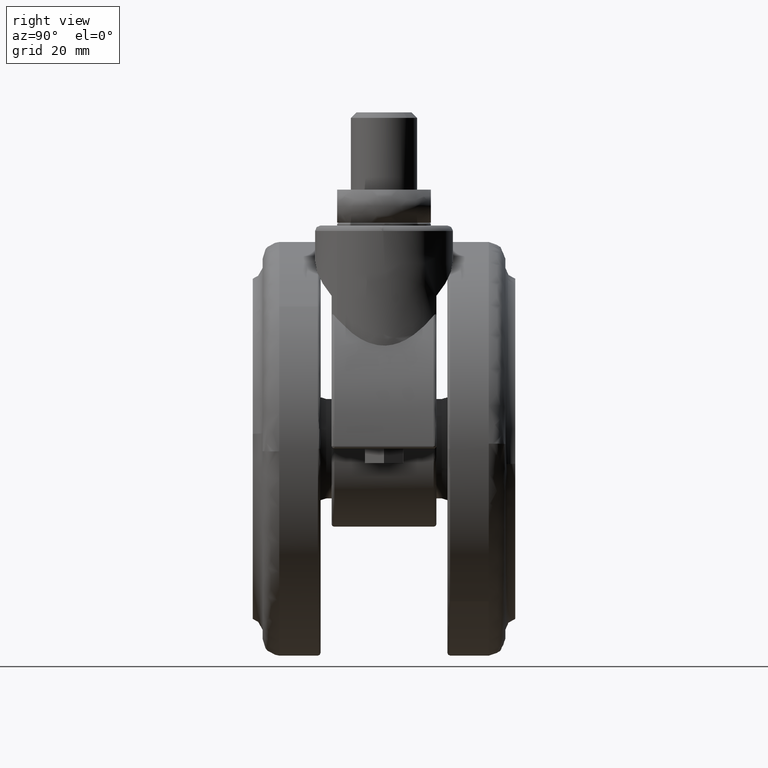
[diagram: clean part render]
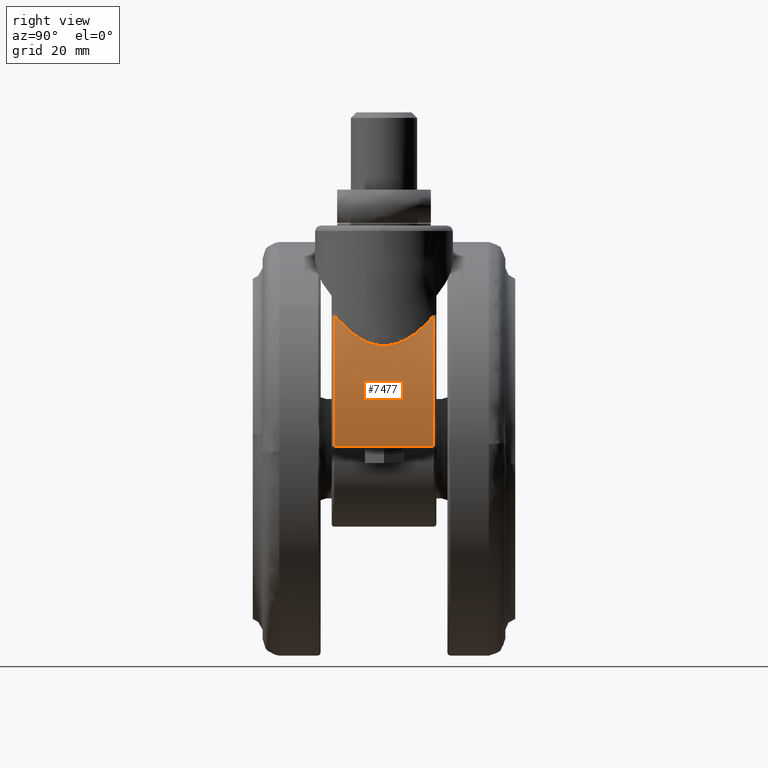
[diagram: same view with one face highlighted and labeled with its STEP entity id]
A machine part, right view. The second image highlights one B-rep face of the part: STEP entity #7477.
In plain terms, the highlighted face is a freeform B-spline surface patch.
Its self-contained STEP definition (entity closure, byte-faithful):
#6172=CARTESIAN_POINT('',(17.496575811524998,9.000000000000199,-39.993243243243249));
#6173=VERTEX_POINT('',#6172);
#6184=CARTESIAN_POINT('',(17.496575811524998,-8.999999999999799,-39.993243243243249));
#6185=VERTEX_POINT('',#6184);
#6186=CARTESIAN_POINT('',(17.496575811524998,-8.999999999999799,-39.993243243243249));
#6187=CARTESIAN_POINT('',(17.496575811524998,9.000000000000199,-39.993243243243249));
#6188=QUASI_UNIFORM_CURVE('',1,(#6186,#6187),.UNSPECIFIED.,.F.,.U.);
#6189=EDGE_CURVE('',#6185,#6173,#6188,.T.);
#6278=CARTESIAN_POINT('',(8.674675786448560,9.000000000000199,-16.333639733256700));
#6279=VERTEX_POINT('',#6278);
#6280=CARTESIAN_POINT('',(17.496575811524998,9.000000000000199,-39.993243243243249));
#6281=CARTESIAN_POINT('',(17.471301773724559,9.000000000000199,-38.115516754322641));
#6282=CARTESIAN_POINT('',(17.191327663076169,9.000000000000206,-34.966868089372483));
#6283=CARTESIAN_POINT('',(16.132511593606839,9.000000000000174,-30.111517220592152));
#6284=CARTESIAN_POINT('',(14.704960632235441,9.000000000000254,-26.051604841453219));
#6285=CARTESIAN_POINT('',(12.296016443733150,9.000000000000147,-21.175348397541121));
#6286=CARTESIAN_POINT('',(10.230906944388160,9.000000000000226,-18.179661245337659));
#6287=CARTESIAN_POINT('',(8.674675786448560,9.000000000000199,-16.333639733256700));
#6288=B_SPLINE_CURVE_WITH_KNOTS('',3,(#6280,#6281,#6282,#6283,#6284,#6285,#6286,#6287),.UNSPECIFIED.,.F.,.U.,(4,1,1,1,1,4),(0.000000010326218,5.633679832756950,9.456548642286531,14.889004471168080,18.510668446250921,25.753977237311972),.UNSPECIFIED.);
#6289=EDGE_CURVE('',#6173,#6279,#6288,.T.);
#6581=CARTESIAN_POINT('',(9.147245955306566,-8.519264917534237,-16.905762752687028));
#6582=VERTEX_POINT('',#6581);
#6588=CARTESIAN_POINT('',(9.147245955306566,-8.519264917534237,-16.905762752687028));
#6589=CARTESIAN_POINT('',(9.247356357006991,-8.411771526018679,-17.029436511179831));
#6590=CARTESIAN_POINT('',(9.346004322458734,-8.302049334377275,-17.152913141441338));
#6591=CARTESIAN_POINT('',(9.688441685542877,-7.907256413055716,-17.587037931665328));
#6592=CARTESIAN_POINT('',(9.922337149897501,-7.611959309314304,-17.893731907356479));
#6593=CARTESIAN_POINT('',(10.366810685439351,-6.994564645707369,-18.494400126198322));
#6594=CARTESIAN_POINT('',(10.577398748328759,-6.672497822719326,-18.788401095951791));
#6595=CARTESIAN_POINT('',(10.974595606934260,-5.996819318535755,-19.358919909190458));
#6596=CARTESIAN_POINT('',(11.161229545195489,-5.643273742983121,-19.635492585899339));
#6597=CARTESIAN_POINT('',(11.378236784279739,-5.176518015678319,-19.965577112114769));
#6598=CARTESIAN_POINT('',(11.420810402907991,-5.081921850687537,-20.030790981502481));
#6599=CARTESIAN_POINT('',(11.503828463562551,-4.891090920881927,-20.158794625212440));
#6600=CARTESIAN_POINT('',(11.544330049325140,-4.794735702971859,-20.221670981970831));
#6601=CARTESIAN_POINT('',(11.662754014432950,-4.502701186590584,-20.406680758911421));
#6602=CARTESIAN_POINT('',(11.737601380807741,-4.304060663140195,-20.525205538846699));
#6603=CARTESIAN_POINT('',(11.949183743082051,-3.694843566808416,-20.864048120155449));
#6604=CARTESIAN_POINT('',(12.073108447682950,-3.271164365460575,-21.067901038650440));
#6605=CARTESIAN_POINT('',(12.202672602576600,-2.712553134672237,-21.284369785416679));
#6606=CARTESIAN_POINT('',(12.227300077596990,-2.599344926384908,-21.325715298538281));
#6607=CARTESIAN_POINT('',(12.273426678786890,-2.372015704980111,-21.403455963400489));
#6608=CARTESIAN_POINT('',(12.294989186927021,-2.257632873940410,-21.439956645643640));
#6609=CARTESIAN_POINT('',(12.355078228713040,-1.912243448831459,-21.542015743305051));
#6610=CARTESIAN_POINT('',(12.389013465751690,-1.678998182743567,-21.600137221222429));
#6611=CARTESIAN_POINT('',(12.443962217469860,-1.206023753200373,-21.694619887922300));
#6612=CARTESIAN_POINT('',(12.464977265386739,-0.966294827155275,-21.730981251740719));
#6613=CARTESIAN_POINT('',(12.486119160355560,-0.601398010719242,-21.767614178871710));
#6614=CARTESIAN_POINT('',(12.491438573953991,-0.478623756592452,-21.776846254261731));
#6615=CARTESIAN_POINT('',(12.498435539651110,-0.232867159939253,-21.788993778346981));
#6616=CARTESIAN_POINT('',(12.500124370651680,-0.109824969659423,-21.791928668049120));
#6617=CARTESIAN_POINT('',(12.499468332694139,0.505890005481192,-21.790789030964039));
#6618=CARTESIAN_POINT('',(12.469988860225170,0.987817950682985,-21.739348081892270));
#6619=CARTESIAN_POINT('',(12.386604355396731,1.696654764084860,-21.596007631001520));
#6620=CARTESIAN_POINT('',(12.352254373117750,1.930587779272727,-21.537192168130229));
#6621=CARTESIAN_POINT('',(12.291206528891260,2.278175643044945,-21.433547756859031));
#6622=CARTESIAN_POINT('',(12.269255049278760,2.393494790096603,-21.396407025856849));
#6623=CARTESIAN_POINT('',(12.222764270652220,2.620585837943552,-21.318093205238618));
#6624=CARTESIAN_POINT('',(12.198169950196920,2.732689485647263,-21.276826485861061));
#6625=CARTESIAN_POINT('',(12.068795791537539,3.286515837784289,-21.060788866956791));
#6626=CARTESIAN_POINT('',(11.944976482768981,3.708357481131427,-20.857199210005970));
#6627=CARTESIAN_POINT('',(11.733004098429889,4.316562390864305,-20.517901926088729));
#6628=CARTESIAN_POINT('',(11.657939291645850,4.515165634984390,-20.399092158678702));
#6629=CARTESIAN_POINT('',(11.539020963323701,4.807500781010368,-20.213414126896229));
#6630=CARTESIAN_POINT('',(11.498263915903280,4.904157328610616,-20.150178763810839));
#6631=CARTESIAN_POINT('',(11.415015712830209,5.094923779966189,-20.021898489889161));
#6632=CARTESIAN_POINT('',(11.372548146203069,5.188992522173688,-19.956888430186620));
#6633=CARTESIAN_POINT('',(11.156126650589041,5.653205436963143,-19.627888730612991));
#6634=CARTESIAN_POINT('',(10.969995848044229,6.005136135956955,-19.352198632920281));
#6635=CARTESIAN_POINT('',(10.573799996845040,6.678115167778007,-18.783349752395750));
#6636=CARTESIAN_POINT('',(10.363710907776680,6.999101233505522,-18.490138286279191));
#6637=CARTESIAN_POINT('',(9.920187888482683,7.614709048426341,-17.890902089307279));
#6638=CARTESIAN_POINT('',(9.686744418133690,7.909301650335262,-17.584851462061280));
#6639=CARTESIAN_POINT('',(9.318833368236888,8.333328397688620,-17.118485565061320));
#6640=CARTESIAN_POINT('',(9.193070501046153,8.471832680947646,-16.961614498670290));
#6641=CARTESIAN_POINT('',(8.937317559053188,8.741215535108967,-16.647901364765669));
#6642=CARTESIAN_POINT('',(8.807146180251904,8.872318031507378,-16.490822918592521));
#6643=CARTESIAN_POINT('',(8.674675786448560,9.000000000000199,-16.333639733256700));
#6644=B_SPLINE_CURVE_WITH_KNOTS('',3,(#6588,#6589,#6590,#6591,#6592,#6593,#6594,#6595,#6596,#6597,#6598,#6599,#6600,#6601,#6602,#6603,#6604,#6605,#6606,#6607,#6608,#6609,#6610,#6611,#6612,#6613,#6614,#6615,#6616,#6617,#6618,#6619,#6620,#6621,#6622,#6623,#6624,#6625,#6626,#6627,#6628,#6629,#6630,#6631,#6632,#6633,#6634,#6635,#6636,#6637,#6638,#6639,#6640,#6641,#6642,#6643),.UNSPECIFIED.,.F.,.U.,(4,2,2,2,2,2,2,2,2,2,2,2,2,2,2,2,2,2,2,2,2,2,2,2,2,2,2,4),(0.037886967373887,0.062500000000000,0.125000000000001,0.187500000000001,0.250000000000001,0.265625000000001,0.281250000000001,0.312500000000001,0.375000000000002,0.390625000000002,0.406250000000001,0.437500000000001,0.468750000000001,0.484375000000001,0.500000000000001,0.562500000000001,0.593750000000001,0.609375000000001,0.625000000000000,0.687500000000000,0.718750000000000,0.734374999999999,0.749999999999999,0.812499999999999,0.875000000000000,0.937500000000000,0.968750000000000,1.0),.UNSPECIFIED.);
#6645=EDGE_CURVE('',#6582,#6279,#6644,.T.);
#6834=CARTESIAN_POINT('',(8.674675786448919,-8.999999999999799,-16.333639733257101));
#6835=VERTEX_POINT('',#6834);
#6865=CARTESIAN_POINT('',(8.674675786448919,-8.999999999999799,-16.333639733257101));
#6866=CARTESIAN_POINT('',(8.807461219190213,-8.872014634270741,-16.491196574538549));
#6867=CARTESIAN_POINT('',(8.937883278771903,-8.740643856150280,-16.648584769310929));
#6868=CARTESIAN_POINT('',(9.093149506017870,-8.577074538625563,-16.839050526659189));
#6869=CARTESIAN_POINT('',(9.120250899355849,-8.548250758892991,-16.872413806516931));
#6870=CARTESIAN_POINT('',(9.147245955306566,-8.519264917534237,-16.905762752687028));
#6871=B_SPLINE_CURVE_WITH_KNOTS('',3,(#6865,#6866,#6867,#6868,#6869,#6870),.UNSPECIFIED.,.F.,.U.,(4,2,4),(0.0,0.031250000000000,0.037886967373887),.UNSPECIFIED.);
#6872=EDGE_CURVE('',#6835,#6582,#6871,.T.);
#7445=CARTESIAN_POINT('',(8.032248127730934,9.450000000000202,-15.591305435545220));
#7446=CARTESIAN_POINT('',(8.032248127730934,-9.461249999999803,-15.591305435545220));
#7447=CARTESIAN_POINT('',(17.787708271788141,9.450000000000202,-26.570101560358975));
#7448=CARTESIAN_POINT('',(17.787708271788141,-9.461249999999801,-26.570101560358975));
#7449=CARTESIAN_POINT('',(17.492419774803217,9.450000000000202,-41.253962485744466));
#7450=CARTESIAN_POINT('',(17.492419774803217,-9.461249999999804,-41.253962485744466));
#7458=(BOUNDED_SURFACE()B_SPLINE_SURFACE(1,2,((#7445,#7447,#7449),(#7446,#7448,#7450)),.UNSPECIFIED.,.F.,.F.,.U.)B_SPLINE_SURFACE_WITH_KNOTS((2,2),(3,3),(0.0,18.911250000000010),(0.0,28.326136528888359),.UNSPECIFIED.)GEOMETRIC_REPRESENTATION_ITEM()RATIONAL_B_SPLINE_SURFACE(((1.0,0.929256783779784,0.995972165825265),(1.0,0.929256783779784,0.995972165825265)))REPRESENTATION_ITEM('')SURFACE());
#7459=CARTESIAN_POINT('',(8.674675786448919,-8.999999999999799,-16.333639733257101));
#7460=CARTESIAN_POINT('',(9.755255675287765,-8.999999999999782,-17.615686261522260));
#7461=CARTESIAN_POINT('',(11.385961365912831,-8.999999999999819,-19.837415430924221));
#7462=CARTESIAN_POINT('',(13.566291986554001,-8.999999999999739,-23.617033283063570));
#7463=CARTESIAN_POINT('',(15.086896277523570,-8.999999999999863,-27.059733221683299));
#7464=CARTESIAN_POINT('',(16.289841888814959,-8.999999999999730,-30.833270885930538));
#7465=CARTESIAN_POINT('',(17.191332374755710,-8.999999999999863,-34.966866729453962));
#7466=CARTESIAN_POINT('',(17.471303564565670,-8.999999999999753,-38.115515974225303));
#7467=CARTESIAN_POINT('',(17.496575811524998,-8.999999999999799,-39.993243243243249));
#7468=B_SPLINE_CURVE_WITH_KNOTS('',3,(#7459,#7460,#7461,#7462,#7463,#7464,#7465,#7466,#7467),.UNSPECIFIED.,.F.,.U.,(4,1,1,1,1,1,4),(0.000000010321422,5.030069339478725,8.249323018309895,13.078175461610391,16.297428605350859,20.120297414880739,25.753977237311410),.UNSPECIFIED.);
#7469=EDGE_CURVE('',#6835,#6185,#7468,.T.);
#7470=ORIENTED_EDGE('',*,*,#7469,.T.);
#7471=ORIENTED_EDGE('',*,*,#6189,.T.);
#7472=ORIENTED_EDGE('',*,*,#6289,.T.);
#7473=ORIENTED_EDGE('',*,*,#6645,.F.);
#7474=ORIENTED_EDGE('',*,*,#6872,.F.);
#7475=EDGE_LOOP('',(#7470,#7471,#7472,#7473,#7474));
#7476=FACE_OUTER_BOUND('',#7475,.T.);
#7477=ADVANCED_FACE('',(#7476),#7458,.T.);